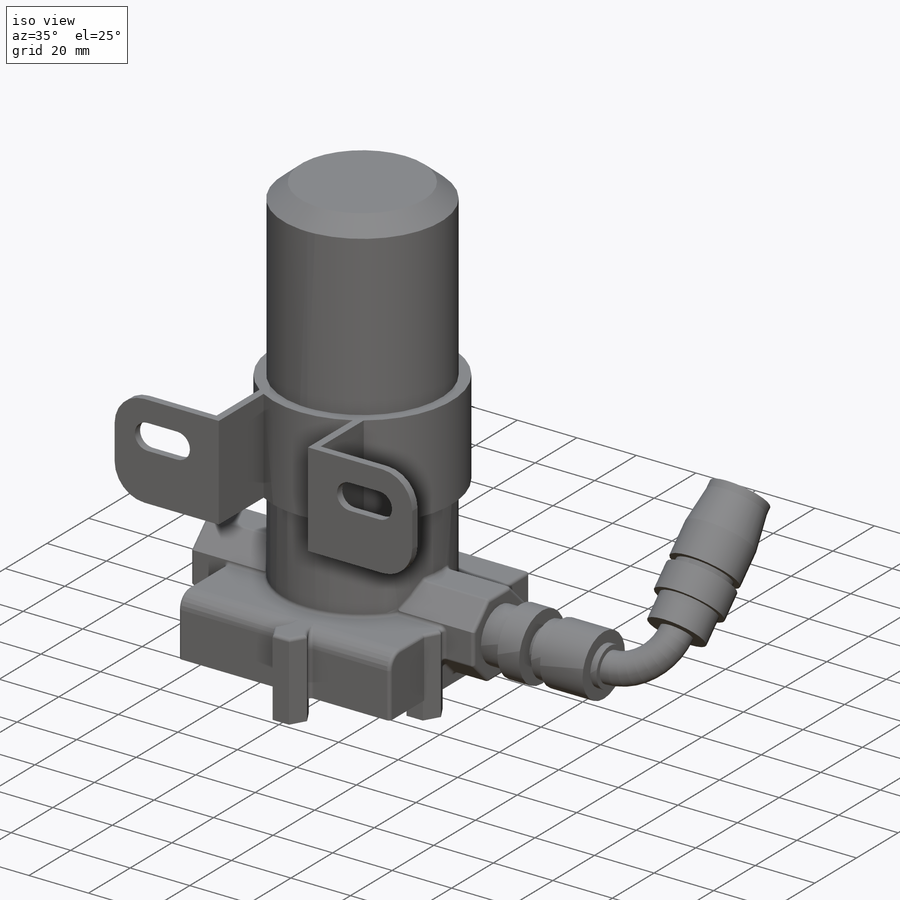
[diagram: iso view]
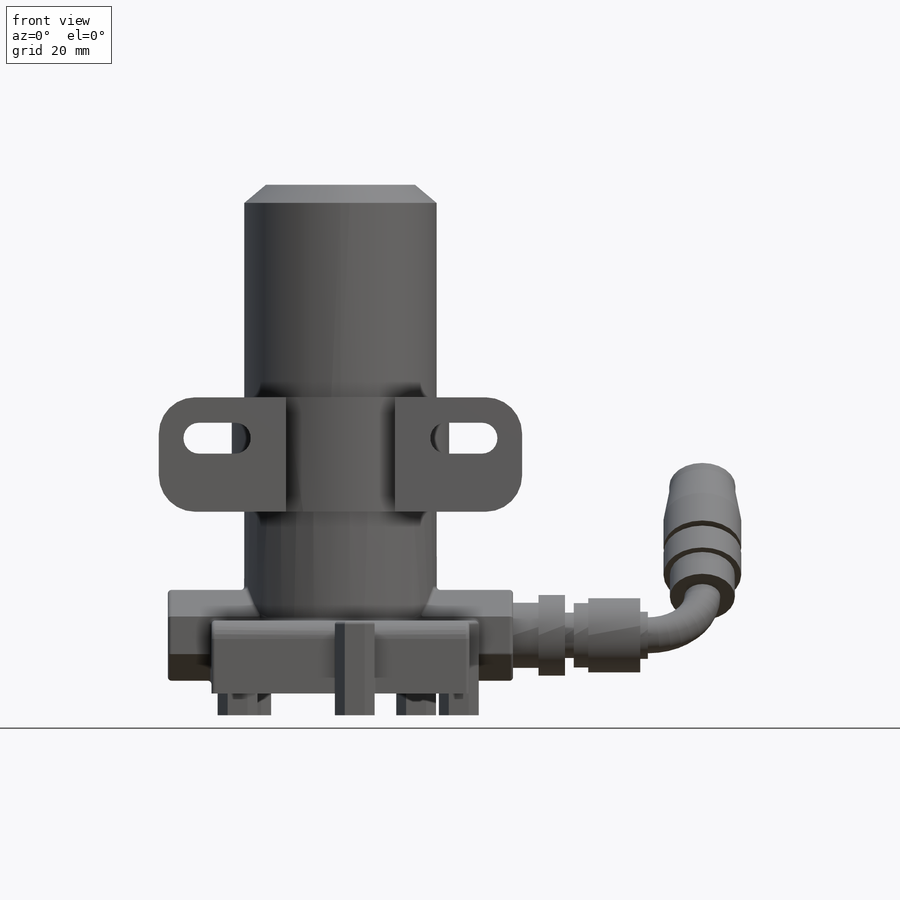
[diagram: front view]
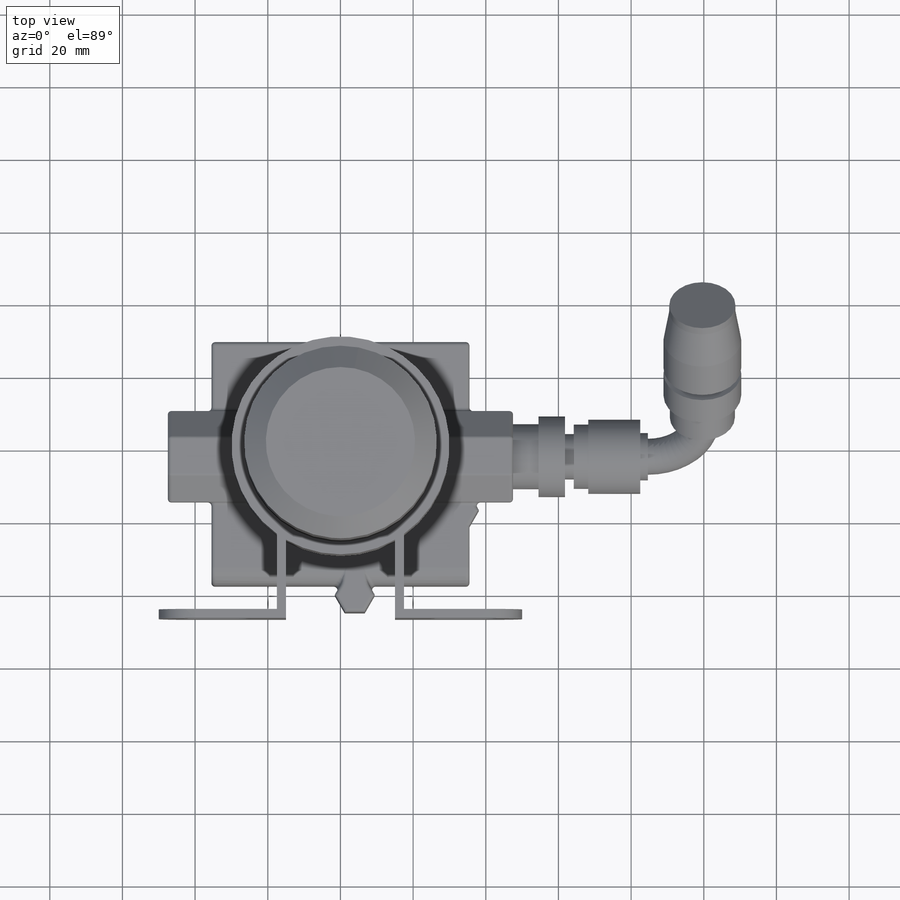
[diagram: top view]
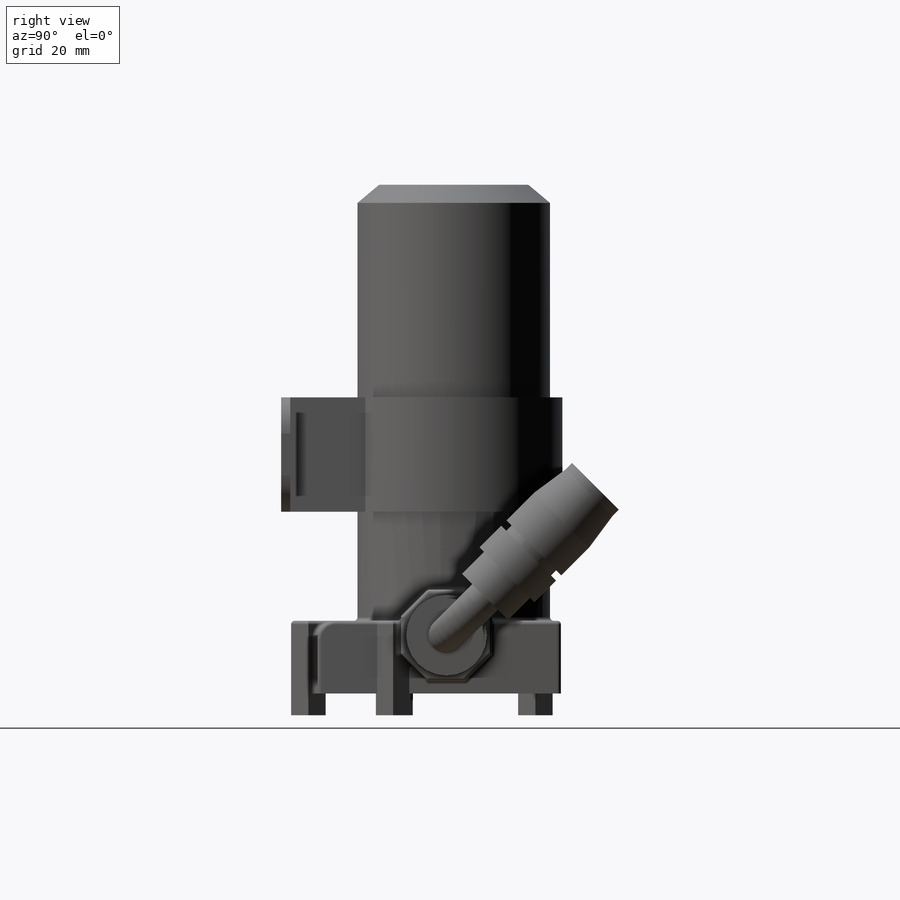
[diagram: right view]
SOLIDWORKS PART (.sldprt)
format: sldprt  version: not decoded by parser v0  size: 701,952 bytes
history: native  units: mm
features: sketch x11, extrude x5, plane x3, fillet x3, revolve x2, material x1, cut_extrude x1, chamfer x1, sweep x1 (+11 scaffold rows collapsed)
feature tree (39):
  scaffold x11  (default folders/planes/origin — collapsed)
  material  "Material <not specified>"
  sketch  "Sketch1"  dims[D1=53.0mm]
  extrude  "Boss-Extrude1"  Depth=140mm
  sketch  "Sketch2"  dims[c1.D1=~74.218341mm c1.D2=~72.006536mm c2.D1=3.0mm c2.D2=71.0mm c2.D3=11.0mm]
  extrude  "Boss-Extrude2"  Depth=20mm
  sketch  "Sketch3"  dims[D1=16.0mm D2=25.0mm D3=2.0mm]
  extrude  "Boss-Extrude3"  Depth=47.5mm
  plane  "Plane1"  Offset=50mm
  sketch  "Sketch4"  dims[c1.D1=60.0mm c1.D2=2.5mm c1.D3=2.5mm c1.D4=17.5mm c1.D5=35.0mm c1.D6=100.0mm c2.D4=~18.596124mm c2.D2=2.5mm c2.D3=2.5mm c3.D4=47.5mm c3.D5=35.0mm c3.D6=2.5mm c3.D7=100.0mm]
  extrude  "Boss-Extrude4"  Depth=31.5mm
  sketch  "Sketch5"  dims[c1.D1=8.5mm c1.D2=10.0mm c1.D3=7.0mm c1.D4=6.8mm c1.D5=~0.214806mm c2.D3=7.0mm c2.D4=6.8mm]
  cut_extrude  "Cut-Extrude1"  [1 undecoded]
  sketch  "Sketch7"  dims[D1=9.5mm]
  extrude  "Boss-Extrude5"  Depth=6mm
  sketch  "3DSketch2"  dims[c1.D1=25.0mm c2.D1=~25.241266mm c3.D1=25.0mm c4.D1=~33.868054mm c5.D1=95.0mm c6.D1=~20.145568mm]
  fillet  "Fillet1"  Radius=10mm
  fillet  "Fillet3"  Radius=5mm
  chamfer  "Chamfer1"  Distance=5mm Angle=50deg
  fillet  "Fillet4"  Radius=1mm
  plane  "PlanePipeCenter"
  plane  "PlaneOutputFitting"
  sketch  "Sketch8"  dims[D1=7.0mm D2=7.3mm D3=2.4mm D4=4.0mm D5=14.3mm D6=2.1mm D7=17.9mm D8=22.2mm D9=12.5mm D10=17.7mm D11=20.4mm D12=13.0mm]
  revolve  "Revolve1"  Angle=360deg
  sketch  "Sketch9"  dims[D1=15.0mm]
  sketch  "Sketch10"  dims[D1=9.9mm]
  sweep  "Sweep-Thin1"
  sketch  "Sketch11"  dims[D1=8.5mm D2=8.5mm D3=2.0mm D4=10.8mm D5=10.8mm D6=2.4mm D7=18.2mm D8=21.4mm D9=17.9mm]
  revolve  "Revolve2"  Angle=360deg
decode coverage: 22 of 24 modeling features carry decoded parameters
note: ~ marks probable driven/reference dimensions
note: 1 parameter value undecoded
note: suppression state not decoded; provenance and decode notes live in map.json
